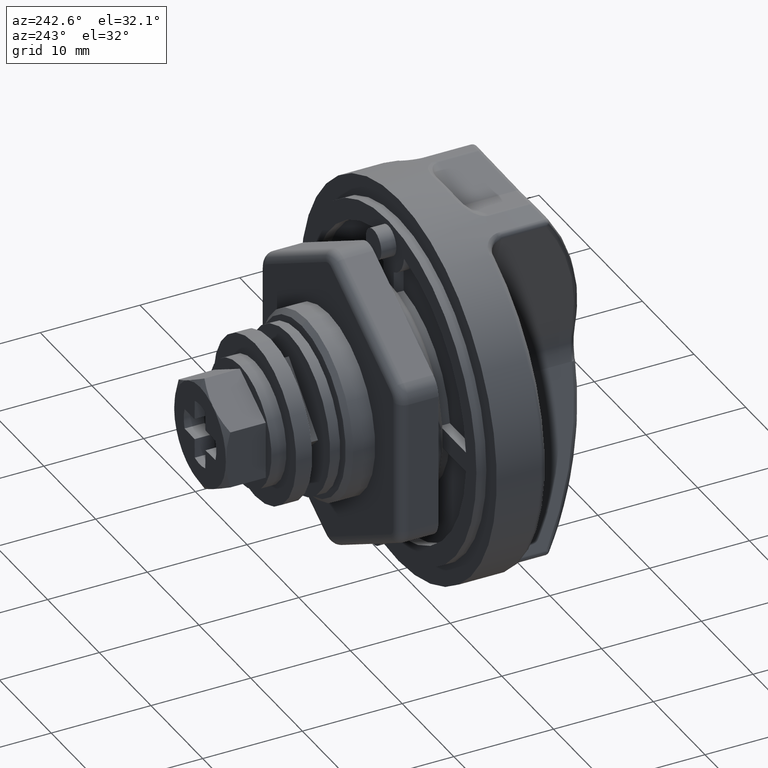
[diagram: clean part render]
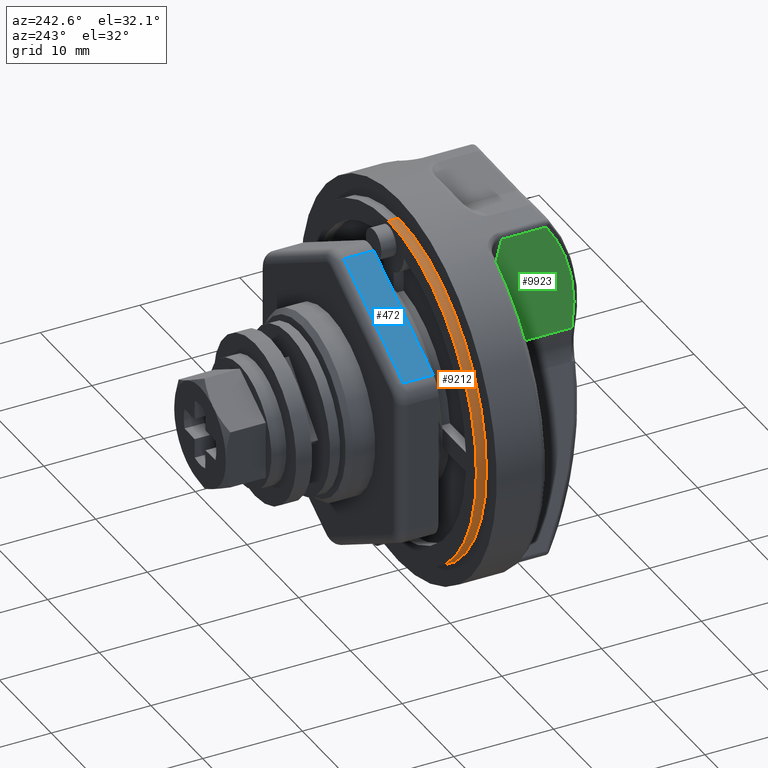
[diagram: same view with three faces highlighted in distinct colors, each labeled with its STEP entity id]
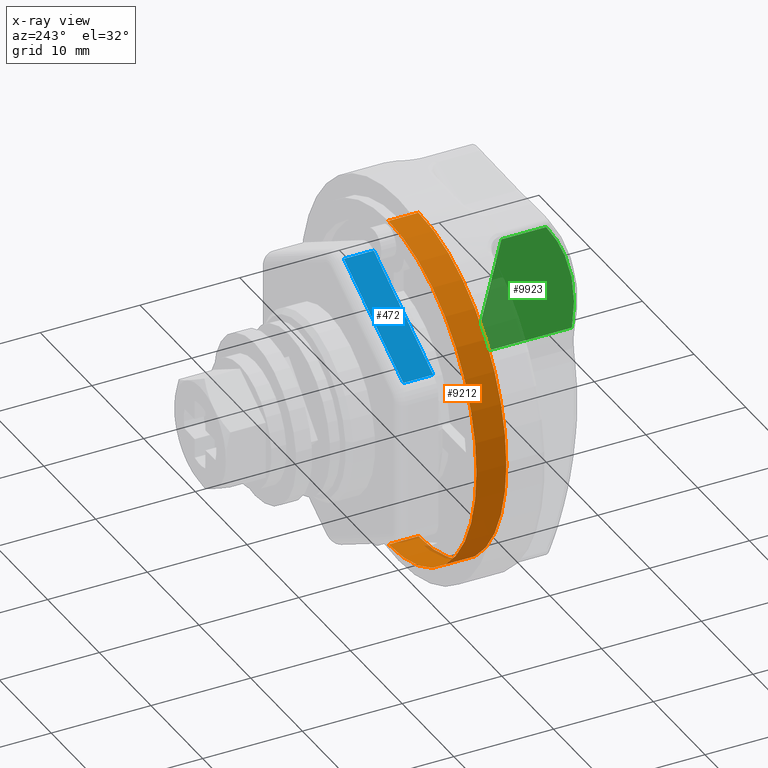
[diagram: x-ray of the same camera — body ghosted, the three highlighted faces saturated]
A machine part, auxiliary view with three faces highlighted in distinct colors.
The next image is the same camera in x-ray (body ghosted, the three faces saturated) — at least one of them is partly hidden behind the body in this view.
Their STEP definitions:

[orange] entity #9212 — the highlighted cylindrical surface (partial cylindrical patch) has radius 17 mm, axis along (0, -1, 0).
#6854 = DIRECTION ( 'NONE',  ( -1.000000000000000000, 0.0000000000000000000, 0.0000000000000000000 ) ) ;
#6855 = VECTOR ( 'NONE', #6854, 1000.000000000000000 ) ;
#6856 = CARTESIAN_POINT ( 'NONE',  ( 0.0000000000000000000, 0.0000000000000000000, 17.00000000000000000 ) ) ;
#6857 = LINE ( 'NONE', #6856, #6855 ) ;
#6858 = CARTESIAN_POINT ( 'NONE',  ( -2.000000000000000000, 0.0000000000000000000, 17.00000000000000000 ) ) ;
#6859 = DIRECTION ( 'NONE',  ( 0.0000000000000000000, 0.0000000000000000000, 1.000000000000000000 ) ) ;
#6860 = DIRECTION ( 'NONE',  ( -1.000000000000000000, 0.0000000000000000000, 0.0000000000000000000 ) ) ;
#6861 = CARTESIAN_POINT ( 'NONE',  ( -2.000000000000000000, 0.0000000000000000000, 0.0000000000000000000 ) ) ;
#6862 = AXIS2_PLACEMENT_3D ( 'NONE', #6861, #6860, #6859 ) ;
#6863 = CIRCLE ( 'NONE', #6862, 17.00000000000000000 ) ;
#6864 = CARTESIAN_POINT ( 'NONE',  ( -2.000000000000000000, 2.081899558550500300E-015, -17.00000000000000000 ) ) ;
#6865 = DIRECTION ( 'NONE',  ( -1.000000000000000000, 0.0000000000000000000, 0.0000000000000000000 ) ) ;
#6866 = VECTOR ( 'NONE', #6865, 1000.000000000000000 ) ;
#6867 = CARTESIAN_POINT ( 'NONE',  ( 0.0000000000000000000, 2.081899558550500300E-015, -17.00000000000000000 ) ) ;
#6868 = LINE ( 'NONE', #6867, #6866 ) ;
#6869 = CARTESIAN_POINT ( 'NONE',  ( 1.000000000000000000, 2.081899558550500300E-015, -17.00000000000000000 ) ) ;
#6870 = DIRECTION ( 'NONE',  ( 0.0000000000000000000, 0.0000000000000000000, 1.000000000000000000 ) ) ;
#6871 = DIRECTION ( 'NONE',  ( -1.000000000000000000, 0.0000000000000000000, 0.0000000000000000000 ) ) ;
#6872 = CARTESIAN_POINT ( 'NONE',  ( 1.000000000000000000, 0.0000000000000000000, 0.0000000000000000000 ) ) ;
#6873 = AXIS2_PLACEMENT_3D ( 'NONE', #6872, #6871, #6870 ) ;
#6874 = CIRCLE ( 'NONE', #6873, 17.00000000000000000 ) ;
#6970 = CARTESIAN_POINT ( 'NONE',  ( 1.000000000000000000, 0.0000000000000000000, 17.00000000000000000 ) ) ;
#6971 = DIRECTION ( 'NONE',  ( 0.0000000000000000000, 0.0000000000000000000, 1.000000000000000000 ) ) ;
#6972 = DIRECTION ( 'NONE',  ( -1.000000000000000000, 0.0000000000000000000, 0.0000000000000000000 ) ) ;
#6973 = CARTESIAN_POINT ( 'NONE',  ( 0.0000000000000000000, 0.0000000000000000000, 0.0000000000000000000 ) ) ;
#6974 = AXIS2_PLACEMENT_3D ( 'NONE', #6973, #6972, #6971 ) ;
#6975 = CYLINDRICAL_SURFACE ( 'NONE', #6974, 17.00000000000000000 ) ;
#6976 = FACE_OUTER_BOUND ( 'NONE', #9213, .T. ) ;
#9161 = EDGE_CURVE ( 'NONE', #9215, #9162, #6874, .T. ) ;
#9162 = VERTEX_POINT ( 'NONE', #6869 ) ;
#9163 = ORIENTED_EDGE ( 'NONE', *, *, #9164, .T. ) ;
#9164 = EDGE_CURVE ( 'NONE', #9162, #9165, #6868, .T. ) ;
#9165 = VERTEX_POINT ( 'NONE', #6864 ) ;
#9166 = ORIENTED_EDGE ( 'NONE', *, *, #9167, .F. ) ;
#9167 = EDGE_CURVE ( 'NONE', #9168, #9165, #6863, .T. ) ;
#9168 = VERTEX_POINT ( 'NONE', #6858 ) ;
#9169 = ORIENTED_EDGE ( 'NONE', *, *, #9170, .F. ) ;
#9170 = EDGE_CURVE ( 'NONE', #9215, #9168, #6857, .T. ) ;
#9212 = ADVANCED_FACE ( 'NONE', ( #6976 ), #6975, .T. ) ;
#9213 = EDGE_LOOP ( 'NONE', ( #9214, #9163, #9166, #9169 ) ) ;
#9214 = ORIENTED_EDGE ( 'NONE', *, *, #9161, .T. ) ;
#9215 = VERTEX_POINT ( 'NONE', #6970 ) ;

[blue] entity #472 — the highlighted planar face has unit normal (0.5, 0, -0.866).
#422 = VERTEX_POINT ( 'NONE', #5361 ) ;
#424 = EDGE_CURVE ( 'NONE', #425, #422, #5360, .T. ) ;
#425 = VERTEX_POINT ( 'NONE', #5420 ) ;
#449 = EDGE_CURVE ( 'NONE', #476, #450, #5440, .T. ) ;
#450 = VERTEX_POINT ( 'NONE', #5436 ) ;
#451 = ORIENTED_EDGE ( 'NONE', *, *, #452, .T. ) ;
#452 = EDGE_CURVE ( 'NONE', #450, #425, #5435, .T. ) ;
#453 = ORIENTED_EDGE ( 'NONE', *, *, #424, .T. ) ;
#472 = ADVANCED_FACE ( 'NONE', ( #5467 ), #5466, .F. ) ;
#473 = EDGE_LOOP ( 'NONE', ( #474, #9547, #451, #453 ) ) ;
#474 = ORIENTED_EDGE ( 'NONE', *, *, #475, .T. ) ;
#475 = EDGE_CURVE ( 'NONE', #422, #476, #5461, .T. ) ;
#476 = VERTEX_POINT ( 'NONE', #5457 ) ;
#5357 = DIRECTION ( 'NONE',  ( 0.0000000000000000000, -0.8660254069044619500, 0.4999999945959609500 ) ) ;
#5358 = VECTOR ( 'NONE', #5357, 1000.000000000000300 ) ;
#5359 = CARTESIAN_POINT ( 'NONE',  ( 3.000000000000000000, 13.50000000000000000, 7.794228739130430100 ) ) ;
#5360 = LINE ( 'NONE', #5359, #5358 ) ;
#5361 = CARTESIAN_POINT ( 'NONE',  ( 3.000000000000000000, 0.9999999891919210100, 15.01110700624004900 ) ) ;
#5420 = CARTESIAN_POINT ( 'NONE',  ( 3.000000000000000000, 12.49999998919192000, 8.371579006240040100 ) ) ;
#5432 = DIRECTION ( 'NONE',  ( -1.000000000000000000, 0.0000000000000000000, 0.0000000000000000000 ) ) ;
#5433 = VECTOR ( 'NONE', #5432, 1000.000000000000000 ) ;
#5434 = CARTESIAN_POINT ( 'NONE',  ( 1002.999999999999900, 12.49999998919192000, 8.371579006240040100 ) ) ;
#5435 = LINE ( 'NONE', #5434, #5433 ) ;
#5436 = CARTESIAN_POINT ( 'NONE',  ( 6.000000000000000000, 12.49999998919192000, 8.371579006240040100 ) ) ;
#5437 = DIRECTION ( 'NONE',  ( 0.0000000000000000000, 0.8660254069044619500, -0.4999999945959609500 ) ) ;
#5438 = VECTOR ( 'NONE', #5437, 1000.000000000000300 ) ;
#5439 = CARTESIAN_POINT ( 'NONE',  ( 6.000000000000000000, 12.49999998919192000, 8.371579006240040100 ) ) ;
#5440 = LINE ( 'NONE', #5439, #5438 ) ;
#5457 = CARTESIAN_POINT ( 'NONE',  ( 6.000000000000000000, 0.9999999891919210100, 15.01110700624004900 ) ) ;
#5458 = DIRECTION ( 'NONE',  ( 1.000000000000000000, 0.0000000000000000000, 0.0000000000000000000 ) ) ;
#5459 = VECTOR ( 'NONE', #5458, 1000.000000000000000 ) ;
#5460 = CARTESIAN_POINT ( 'NONE',  ( 1002.999999999999900, 0.9999999891919210100, 15.01110700624004900 ) ) ;
#5461 = LINE ( 'NONE', #5460, #5459 ) ;
#5462 = DIRECTION ( 'NONE',  ( 0.0000000000000000000, 0.8660254069044619500, -0.4999999945959610100 ) ) ;
#5463 = DIRECTION ( 'NONE',  ( 0.0000000000000000000, -0.4999999945959610600, -0.8660254069044620600 ) ) ;
#5464 = CARTESIAN_POINT ( 'NONE',  ( 1002.999999999999900, 13.50000000000000000, 7.794228739130430100 ) ) ;
#5465 = AXIS2_PLACEMENT_3D ( 'NONE', #5464, #5463, #5462 ) ;
#5466 = PLANE ( 'NONE',  #5465 ) ;
#5467 = FACE_OUTER_BOUND ( 'NONE', #473, .T. ) ;
#9547 = ORIENTED_EDGE ( 'NONE', *, *, #449, .T. ) ;

[green] entity #9923 — the highlighted planar face has unit normal (-0.9397, 0, -0.342).
#8335 = CARTESIAN_POINT ( 'NONE',  ( -6.500000000000000000, 1.824451772129480200, 1.771792529856935000 ) ) ;
#8336 = DIRECTION ( 'NONE',  ( -1.000000000000000000, 0.0000000000000000000, 0.0000000000000000000 ) ) ;
#8337 = VECTOR ( 'NONE', #8336, 1000.000000000000000 ) ;
#8338 = CARTESIAN_POINT ( 'NONE',  ( 980.3188798485390400, 1.824451772129480200, 1.771792529856935000 ) ) ;
#8339 = LINE ( 'NONE', #8338, #8337 ) ;
#8340 = DIRECTION ( 'NONE',  ( 0.0000000000000000000, 0.3419868885032886200, 0.9397047238850293500 ) ) ;
#8341 = DIRECTION ( 'NONE',  ( 0.0000000000000000000, 0.9397047238850293500, -0.3419868885032886200 ) ) ;
#8342 = CARTESIAN_POINT ( 'NONE',  ( 980.3188798485390400, 7.528360454521370900, 17.44487858561355200 ) ) ;
#8343 = AXIS2_PLACEMENT_3D ( 'NONE', #8342, #8341, #8340 ) ;
#8344 = PLANE ( 'NONE',  #8343 ) ;
#8345 = FACE_OUTER_BOUND ( 'NONE', #9924, .T. ) ;
#8372 = CARTESIAN_POINT ( 'NONE',  ( -10.99048193701600200, 7.365011792317629300, 16.99603240269425100 ) ) ;
#8373 = CARTESIAN_POINT ( 'NONE',  ( -14.20901502741862800, 5.728120132870372100, 12.49821427989287800 ) ) ;
#8374 = CARTESIAN_POINT ( 'NONE',  ( -16.07171410104472300, 3.832897263056523200, 7.290558830371485200 ) ) ;
#8375 = CARTESIAN_POINT ( 'NONE',  ( -16.43595652558675000, 1.824456088298829900, 1.771804389740785100 ) ) ;
#8376 = CARTESIAN_POINT ( 'NONE',  ( -10.99048193701600200, 7.365011792317629300, 16.99603240269425100 ) ) ;
#8377 =( BOUNDED_CURVE ( )  B_SPLINE_CURVE ( 3, ( #8375, #8374, #8373, #8372 ),
 .UNSPECIFIED., .F., .F. ) 
 B_SPLINE_CURVE_WITH_KNOTS ( ( 4, 4 ),
 ( 1.636701580066939100, 2.191900021193778200 ),
 .UNSPECIFIED. ) 
 CURVE ( )  GEOMETRIC_REPRESENTATION_ITEM ( )  RATIONAL_B_SPLINE_CURVE ( ( 1.000000000000000000, 0.9744774246635082800, 0.9744774246635082800, 1.000000000000000000 ) ) 
 REPRESENTATION_ITEM ( '' )  );
#8378 = CARTESIAN_POINT ( 'NONE',  ( -16.43595652558675000, 1.824456088298829900, 1.771804389740785100 ) ) ;
#8379 = CARTESIAN_POINT ( 'NONE',  ( -16.43582067579706800, 1.824453209201586400, 1.771796478614885900 ) ) ;
#8380 = CARTESIAN_POINT ( 'NONE',  ( -16.43568449988245600, 1.824451772129479100, 1.771792529856932400 ) ) ;
#8381 = CARTESIAN_POINT ( 'NONE',  ( -16.43554838948435300, 1.824451772129480200, 1.771792529856935000 ) ) ;
#8382 = CARTESIAN_POINT ( 'NONE',  ( -16.43595652558675000, 1.824456088298829900, 1.771804389740785100 ) ) ;
#8383 = B_SPLINE_CURVE_WITH_KNOTS ( 'NONE', 3,
 ( #8381, #8380, #8379, #8378 ),
 .UNSPECIFIED., .F., .F.,
 ( 4, 4 ),
 ( 0.0000000000000000000, 4.083311943037199600E-007 ),
 .UNSPECIFIED. ) ;
#8384 = CARTESIAN_POINT ( 'NONE',  ( -16.43554838948435300, 1.824451772129480200, 1.771792529856935000 ) ) ;
#8464 = DIRECTION ( 'NONE',  ( 0.0000000000000000000, -0.3419868885032886800, -0.9397047238850293500 ) ) ;
#8465 = VECTOR ( 'NONE', #8464, 1000.000000000000100 ) ;
#8466 = CARTESIAN_POINT ( 'NONE',  ( -6.500000000000000000, 7.528360454521370900, 17.44487858561355200 ) ) ;
#8467 = LINE ( 'NONE', #8466, #8465 ) ;
#8468 = CARTESIAN_POINT ( 'NONE',  ( -6.500000000000000000, 7.365011792317629300, 16.99603240269425100 ) ) ;
#8469 = DIRECTION ( 'NONE',  ( 1.000000000000000000, 0.0000000000000000000, 0.0000000000000000000 ) ) ;
#8470 = VECTOR ( 'NONE', #8469, 1000.000000000000000 ) ;
#8471 = CARTESIAN_POINT ( 'NONE',  ( -6.500000000000000000, 7.365011792317629300, 16.99603240269425100 ) ) ;
#8472 = LINE ( 'NONE', #8471, #8470 ) ;
#9923 = ADVANCED_FACE ( 'NONE', ( #8345 ), #8344, .T. ) ;
#9924 = EDGE_LOOP ( 'NONE', ( #9925, #9929, #9932, #9990, #9993 ) ) ;
#9925 = ORIENTED_EDGE ( 'NONE', *, *, #9926, .T. ) ;
#9926 = EDGE_CURVE ( 'NONE', #9927, #9928, #8339, .T. ) ;
#9927 = VERTEX_POINT ( 'NONE', #8335 ) ;
#9928 = VERTEX_POINT ( 'NONE', #8384 ) ;
#9929 = ORIENTED_EDGE ( 'NONE', *, *, #9930, .T. ) ;
#9930 = EDGE_CURVE ( 'NONE', #9928, #9931, #8383, .T. ) ;
#9931 = VERTEX_POINT ( 'NONE', #8382 ) ;
#9932 = ORIENTED_EDGE ( 'NONE', *, *, #9933, .T. ) ;
#9933 = EDGE_CURVE ( 'NONE', #9931, #9934, #8377, .T. ) ;
#9934 = VERTEX_POINT ( 'NONE', #8376 ) ;
#9990 = ORIENTED_EDGE ( 'NONE', *, *, #9991, .T. ) ;
#9991 = EDGE_CURVE ( 'NONE', #9934, #9992, #8472, .T. ) ;
#9992 = VERTEX_POINT ( 'NONE', #8468 ) ;
#9993 = ORIENTED_EDGE ( 'NONE', *, *, #9994, .T. ) ;
#9994 = EDGE_CURVE ( 'NONE', #9992, #9927, #8467, .T. ) ;